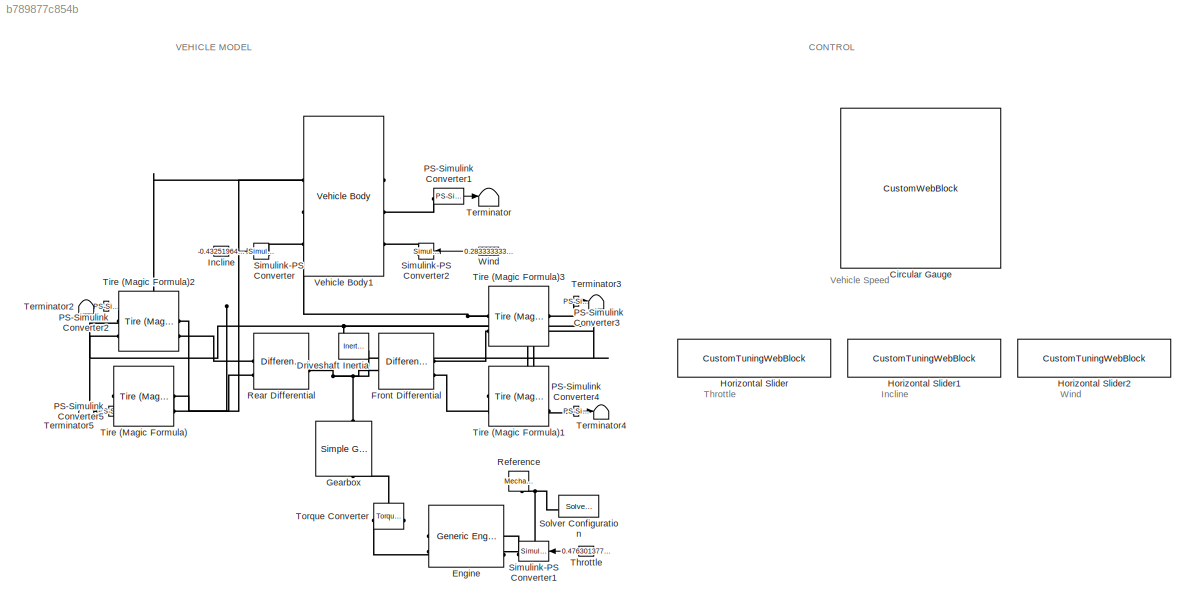
MODEL slx_b789877c854b
KIND model
CONFIG AbsTol = 1e-3
CONFIG EnableMultiTasking = on
CONFIG FixedStep = 0.001
CONFIG MaxStep = auto
CONFIG MinStep = auto
CONFIG PreLoadFcn = inertiaDriveShaft = 12;\nratioDiff = 2;\nradiusWheel = 16*2.54/100;\nmassVehicle = 1500;\ninertiaLateral = 25*(radiusWheel)^2;\nbeta = 15;\nengineRPM0 = 800;\ntireStiffness = 200000;\ntireDamping = 1000;\n\nSimple=Simulink.Variant('TIRE==1');\nFriction=Simulink.Variant('TIRE==2');\nMFormula=Simulink.Variant('TIRE==3');\n\nTIRE=3;
CONFIG RelTol = 1e-3
CONFIG SampleTimeConstraint = Unconstrained
CONFIG SolverName = FixedStepAuto
CONFIG StartTime = 0.0
CONFIG StopTime = 100
BLOCK [CustomWebBlock] Circular Gauge
  Configuration = {"components":[{"name":"CircularScaleComponent","settings":{"bounds":{"max":100,"min":0,"tickInterval":"auto"},"direction":"cw","flipLimits":0,"innerRadius":0.75,"internalTickHeightScaleFactor":1,"labelColor":[255,255,200],"labelFont":{"font":"Arial","fontSize":12},"labelRadius":0.528,"labelTransparency":1,"minorTickHeightScaleFactor":0.2,"needleImage":{"size":[200,50],"src":"data:image\/svg+xml;b...<+12640ch>
  LabelPosition = Hide
  ShowInitialText = on
BLOCK [Reference] Driveshaft Inertia  REF=fl_lib/Mechanical/Rotational Elements/Inertia
  SourceBlock = fl_lib/Mechanical/Rotational Elements/Inertia
  SourceType = Inertia
BLOCK [Reference] Engine  REF=sdl_lib/Engines & Motors/Generic Engine
  NameLocation = top
  SourceBlock = sdl_lib/Engines & Motors/Generic Engine
  SourceType = Generic Engine
BLOCK [Reference] Front Differential  REF=sdl_lib/Gears/Differential
  SourceBlock = sdl_lib/Gears/Differential
  SourceType = Differential
BLOCK [Reference] Gearbox  REF=sdl_lib/Gears/Simple Gear
  NameLocation = left
  SourceBlock = sdl_lib/Gears/Simple Gear
  SourceType = Simple Gear
BLOCK [CustomTuningWebBlock] Horizontal Slider
  Configuration = {"components":[{"name":"LinearScaleComponent","settings":{"bounds":{"max":1,"min":0,"tickInterval":"auto"},"internalTickHeightScaleFactor":0.5,"labelColor":[255,255,200],"labelFont":{"font":"Arial","fontSize":12},"labelOffset":0.05,"labelTransparency":1,"needleImage":{"size":[596,842],"src":"data:image\/svg+xml;base64,PD94bWwgdmVyc2lvbj0iMS4wIiBlbmNvZGluZz0idXRmLTgiPz4NCjwhLS0gR2VuZXJhdG9yOiBBZG9i...<+5488ch>
  LabelPosition = Hide
  ShowInitialText = on
BLOCK [CustomTuningWebBlock] Horizontal Slider1
  Configuration = {"components":[{"name":"LinearScaleComponent","settings":{"bounds":{"max":1,"min":-1,"tickInterval":"auto"},"internalTickHeightScaleFactor":0.5,"labelColor":[255,255,200],"labelFont":{"font":"Arial","fontSize":12},"labelOffset":0.05,"labelTransparency":1,"needleImage":{"size":[596,842],"src":"data:image\/svg+xml;base64,PD94bWwgdmVyc2lvbj0iMS4wIiBlbmNvZGluZz0idXRmLTgiPz4NCjwhLS0gR2VuZXJhdG9yOiBBZG9...<+5489ch>
  LabelPosition = Hide
  ShowInitialText = on
BLOCK [CustomTuningWebBlock] Horizontal Slider2
  Configuration = {"components":[{"name":"LinearScaleComponent","settings":{"bounds":{"max":1,"min":0,"tickInterval":"auto"},"internalTickHeightScaleFactor":0.5,"labelColor":[255,255,200],"labelFont":{"font":"Arial","fontSize":12},"labelOffset":0.05,"labelTransparency":1,"needleImage":{"size":[596,842],"src":"data:image\/svg+xml;base64,PD94bWwgdmVyc2lvbj0iMS4wIiBlbmNvZGluZz0idXRmLTgiPz4NCjwhLS0gR2VuZXJhdG9yOiBBZG9i...<+5488ch>
  LabelPosition = Hide
  ShowInitialText = on
BLOCK [Constant] Incline
  Value = -0.4325196408529741
BLOCK [Reference] PS-Simulink Converter1  REF=nesl_utility/PS-Simulink
Converter
  SourceBlock = nesl_utility/PS-Simulink\nConverter
  SourceType = PS-Simulink\nConverter
BLOCK [Reference] PS-Simulink Converter2  REF=nesl_utility/PS-Simulink
Converter
  NameLocation = top
  SourceBlock = nesl_utility/PS-Simulink\nConverter
  SourceType = PS-Simulink\nConverter
BLOCK [Reference] PS-Simulink Converter3  REF=nesl_utility/PS-Simulink
Converter
  SourceBlock = nesl_utility/PS-Simulink\nConverter
  SourceType = PS-Simulink\nConverter
BLOCK [Reference] PS-Simulink Converter4  REF=nesl_utility/PS-Simulink
Converter
  SourceBlock = nesl_utility/PS-Simulink\nConverter
  SourceType = PS-Simulink\nConverter
BLOCK [Reference] PS-Simulink Converter5  REF=nesl_utility/PS-Simulink
Converter
  NameLocation = top
  SourceBlock = nesl_utility/PS-Simulink\nConverter
  SourceType = PS-Simulink\nConverter
BLOCK [Reference] Rear Differential  REF=sdl_lib/Gears/Differential
  SourceBlock = sdl_lib/Gears/Differential
  SourceType = Differential
BLOCK [Reference] Reference  REF=fl_lib/Mechanical/Rotational Elements/Mechanical
Rotational Reference
  NameLocation = left
  SourceBlock = fl_lib/Mechanical/Rotational Elements/Mechanical\nRotational Reference
  SourceType = Mechanical\nRotational Reference
BLOCK [Reference] Simulink-PS Converter  REF=nesl_utility/Simulink-PS
Converter
  SourceBlock = nesl_utility/Simulink-PS\nConverter
  SourceType = Simulink-PS\nConverter
BLOCK [Reference] Simulink-PS Converter1  REF=nesl_utility/Simulink-PS
Converter
  NameLocation = top
  SourceBlock = nesl_utility/Simulink-PS\nConverter
  SourceType = Simulink-PS\nConverter
BLOCK [Reference] Simulink-PS Converter2  REF=nesl_utility/Simulink-PS
Converter
  NameLocation = top
  SourceBlock = nesl_utility/Simulink-PS\nConverter
  SourceType = Simulink-PS\nConverter
BLOCK [Reference] Solver Configuration  REF=nesl_utility/Solver
Configuration
  NameLocation = top
  SourceBlock = nesl_utility/Solver\nConfiguration
  SourceType = Solver\nConfiguration
BLOCK [Terminator] Terminator
BLOCK [Terminator] Terminator2
  NameLocation = top
BLOCK [Terminator] Terminator3
BLOCK [Terminator] Terminator4
BLOCK [Terminator] Terminator5
  NameLocation = top
BLOCK [Constant] Throttle
  NameLocation = top
  Value = 0.4763013775971093
BLOCK [Reference] Tire (Magic Formula)  REF=sdl_lib/Tires & Vehicles/Tire (Magic Formula)
  NameLocation = top
  SourceBlock = sdl_lib/Tires & Vehicles/Tire (Magic Formula)
  SourceType = Tire (Magic Formula)
BLOCK [Reference] Tire (Magic Formula)1  REF=sdl_lib/Tires & Vehicles/Tire (Magic Formula)
  NameLocation = top
  SourceBlock = sdl_lib/Tires & Vehicles/Tire (Magic Formula)
  SourceType = Tire (Magic Formula)
BLOCK [Reference] Tire (Magic Formula)2  REF=sdl_lib/Tires & Vehicles/Tire (Magic Formula)
  SourceBlock = sdl_lib/Tires & Vehicles/Tire (Magic Formula)
  SourceType = Tire (Magic Formula)
BLOCK [Reference] Tire (Magic Formula)3  REF=sdl_lib/Tires & Vehicles/Tire (Magic Formula)
  SourceBlock = sdl_lib/Tires & Vehicles/Tire (Magic Formula)
  SourceType = Tire (Magic Formula)
BLOCK [Reference] Torque Converter  REF=sdl_lib/Couplings & Drives/Torque Converter
  NameLocation = top
  SourceBlock = sdl_lib/Couplings & Drives/Torque Converter
  SourceType = Torque Converter
BLOCK [Reference] Vehicle Body1  REF=sdl_lib/Tires & Vehicles/Vehicle Body
  SourceBlock = sdl_lib/Tires & Vehicles/Vehicle Body
  SourceType = Vehicle Body
BLOCK [Constant] Wind
  Value = 0.2833333333333333
ANNOTATION (root): Incline
ANNOTATION (root): Throttle
ANNOTATION (root): Vehicle Speed
ANNOTATION (root): Wind
ANNOTATION (root): CONTROL
ANNOTATION (root): VEHICLE MODEL
LINE Incline:1 -> Simulink-PS Converter:1
LINE PS-Simulink Converter1:1 -> Terminator:1
LINE PS-Simulink Converter2:1 -> Terminator2:1
LINE PS-Simulink Converter3:1 -> Terminator3:1
LINE PS-Simulink Converter4:1 -> Terminator4:1
LINE PS-Simulink Converter5:1 -> Terminator5:1
LINE Throttle:1 -> Simulink-PS Converter1:1
LINE Wind:1 -> Simulink-PS Converter2:1
PNET net1: Driveshaft Inertia:LConn1 -- Front Differential:LConn1 -- Gearbox:RConn1 -- Rear Differential:LConn1
PLINE Engine:LConn1 -- Simulink-PS Converter1:RConn1
PNET net2: Engine:LConn2 -- Reference:LConn1 -- Solver Configuration:RConn1
PLINE Engine:RConn3 -- Torque Converter:LConn1
PLINE Front Differential:RConn1 -- Tire (Magic Formula)3:LConn2
PLINE Front Differential:RConn2 -- Tire (Magic Formula)1:LConn2
PLINE Gearbox:LConn1 -- Torque Converter:RConn1
PLINE PS-Simulink Converter1:LConn1 -- Vehicle Body1:LConn2
PLINE PS-Simulink Converter2:LConn1 -- Tire (Magic Formula)2:RConn1
PLINE PS-Simulink Converter3:LConn1 -- Tire (Magic Formula)3:RConn1
PLINE PS-Simulink Converter4:LConn1 -- Tire (Magic Formula)1:RConn1
PLINE PS-Simulink Converter5:LConn1 -- Tire (Magic Formula):RConn1
PLINE Rear Differential:RConn1 -- Tire (Magic Formula)2:LConn2
PLINE Rear Differential:RConn2 -- Tire (Magic Formula):LConn2
PLINE Simulink-PS Converter2:RConn1 -- Vehicle Body1:LConn3
PLINE Simulink-PS Converter:RConn1 -- Vehicle Body1:RConn3
PNET net3: Tire (Magic Formula)1:LConn1 -- Tire (Magic Formula)3:LConn1 -- Vehicle Body1:RConn2
PNET net4: Tire (Magic Formula)1:RConn2 -- Tire (Magic Formula)2:RConn2 -- Tire (Magic Formula)3:RConn2 -- Tire (Magic Formula):RConn2 -- Vehicle Body1:LConn1
PNET net5: Tire (Magic Formula)2:LConn1 -- Tire (Magic Formula):LConn1 -- Vehicle Body1:RConn1
note: PNET lines group multi-terminal physical nets as a canonical sorted terminal list (undirected conserving connections); 2-terminal nets keep the pairwise PLINE form
